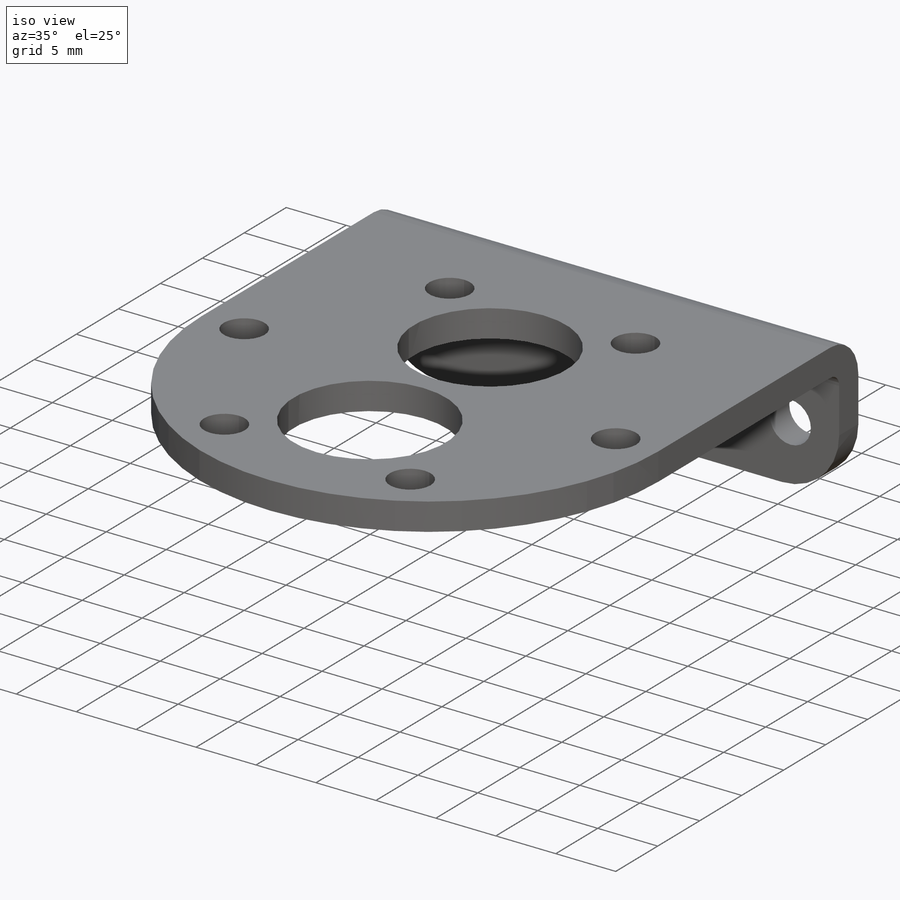
[diagram: iso view]
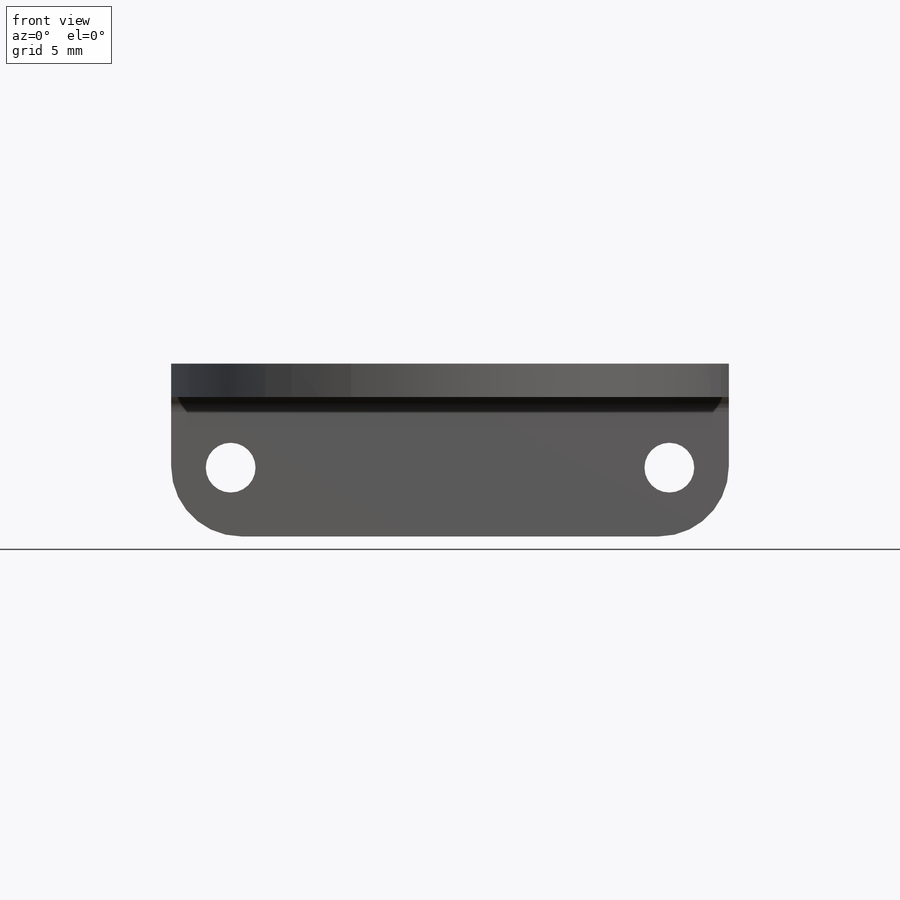
[diagram: front view]
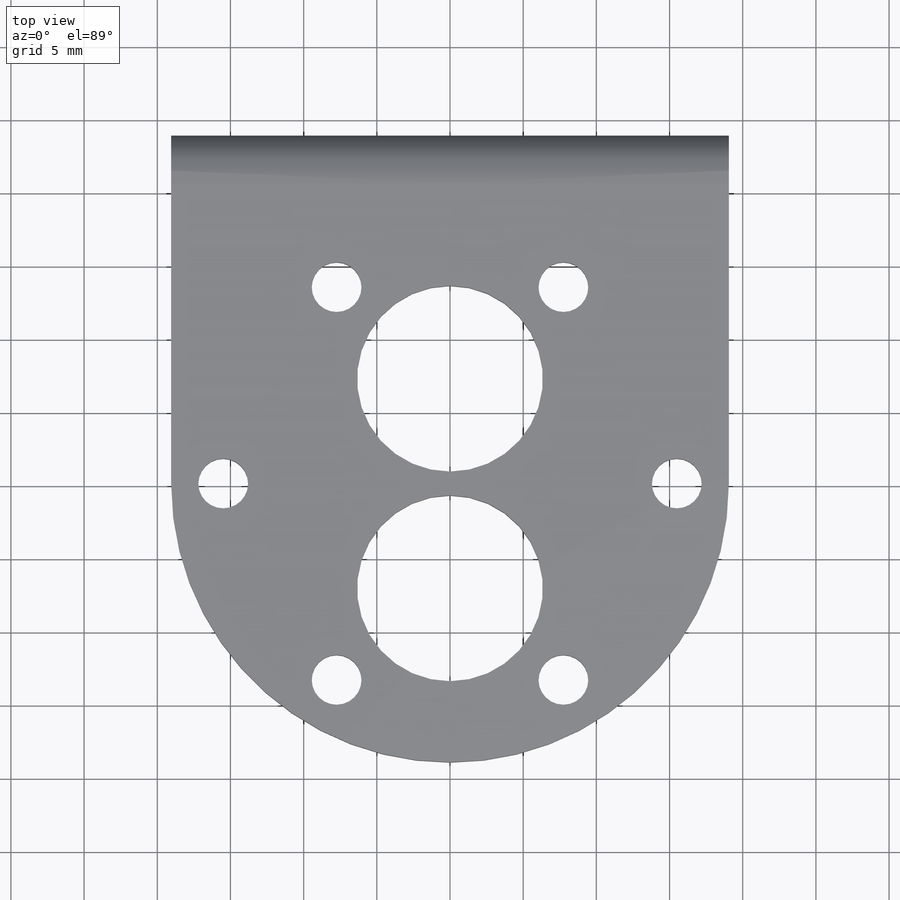
[diagram: top view]
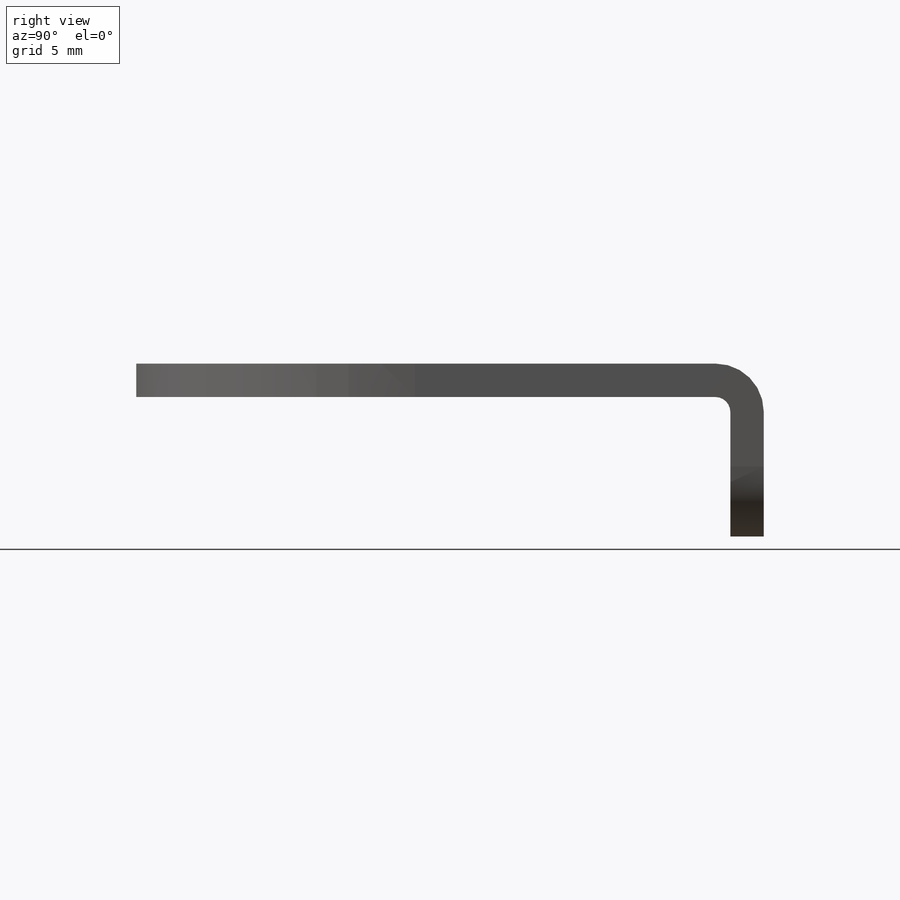
[diagram: right view]
SOLIDWORKS PART (.sldprt)
format: sldprt  version: not decoded by parser v0  size: 328,192 bytes
history: native  units: mm
features: sketch x9, plane x3, sheet_metal_op x2, hole x2, material x1, pattern_circular x1, cut_extrude x1, fillet x1 + 2 further entries (+10 scaffold rows collapsed)
feature tree (32):
  scaffold x10  (default folders/planes/origin — collapsed)
  material  "1060-H12"
  plane  "Piano frontale"
  plane  "Piano superiore"
  plane  "Piano destro"
  sketch  "Schizzo1"  dims[D3=19.15mm D1=42.8752mm D2=38.1mm]
  sheet_metal_op  "Lamiera"
  sheet_metal_op  "Base-Flangia"
  sketch  "Schizzo2"  dims[c1.D1=9.525mm c2.D1=1.016mm c2.D4=90.0deg c2.D5=1.0 c2.D8=10.0mm c2.D9=10.0mm c3.D1=1.016mm c3.D2=500.0mm c3.D3=0.0mm c3.D6=10.0mm c3.D7=9.525mm]
  hole  "Foro per Vite M3-1"  Diameter=3.4mm Depth=11.811mm
  sketch  "Schizzo5"  dims[c1.D2=31.0mm c1.D1=15.494mm c2.D2=~0.570831mm]
  sketch  "Schizzo6"  dims[hole-wizard template sketch: 60 standard entries collapsed; hole parameters kept: c18.Thru Hole Depth=11.811mm]
  pattern_circular  "RipetizioneCircolare1"  Count=6 Angle=60deg
  sketch  "Schizzo7"  dims[c1.D1=~9.231624mm c1.D2=12.7mm c2.D1=16.6624mm]
  cut_extrude  "Taglio-Estrusione1"  Depth=2.54mm
  hole  "Foro per Vite M3-2"  Diameter=3.4mm Depth=42.8752mm
  sketch  "Schizzo3"  dims[c1.D1=3.2625mm c2.D1=90.0deg c3.D1=38.1mm c4.D1=90.0deg c5.D1=3.2625mm c6.D1=90.0deg c7.D1=38.1mm c8.D1=90.0deg c9.D1=38.1mm c10.D1=90.0deg c11.D1=7.112mm c11.D2=4.064mm]
  sketch  "Schizzo4"  dims[hole-wizard template sketch: 60 standard entries collapsed; hole parameters kept: c18.Thru Hole Depth=42.8752mm]
  fillet  "Raccordo"  Radius=4.7752mm
  "Ripetizione piatta"
  sketch  "Linee di piegatura"
  sketch  "Casella di contorno"
  "Trasformazione dello schizzo1"
decode coverage: 12 of 16 modeling features carry decoded parameters; 2 rows unclassified (native names shown)
note: ~ marks probable driven/reference dimensions
note: suppression state not decoded; provenance and decode notes live in map.json
